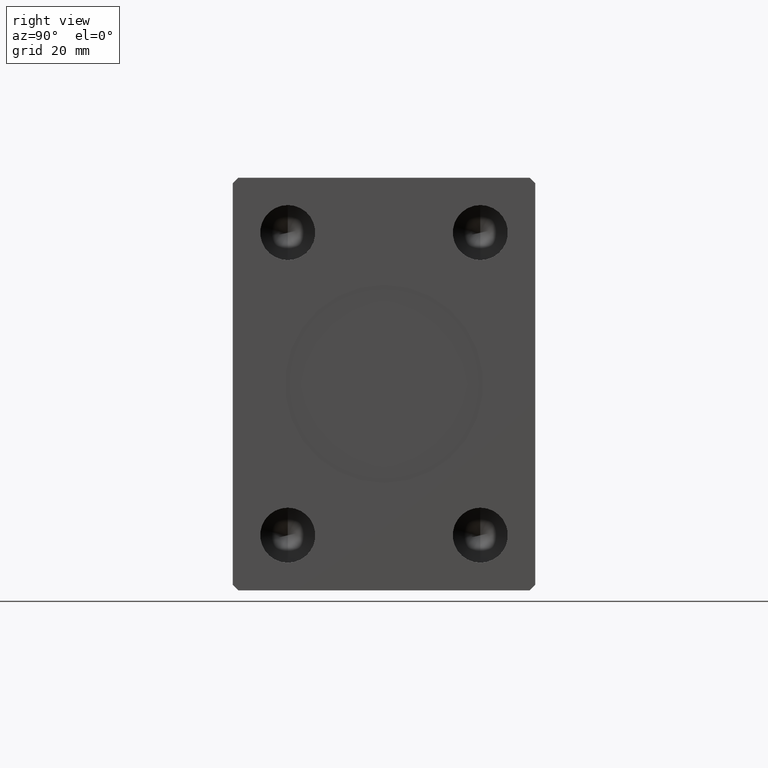
[diagram: clean part render]
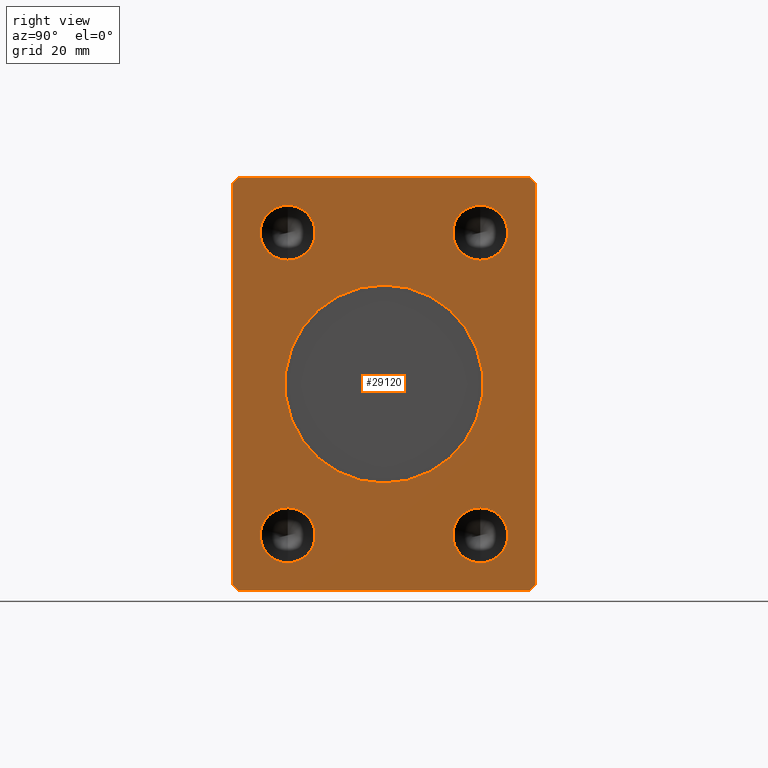
[diagram: same view with one face highlighted and labeled with its STEP entity id]
A machine part, right view. The second image highlights one B-rep face of the part: STEP entity #29120.
In plain terms, the highlighted planar face has unit normal (1, 0, 0).
Its self-contained STEP definition (entity closure, byte-faithful):
#104 = CIRCLE ( 'NONE', #32149, 4.999999999999997335 ) ;
#392 = AXIS2_PLACEMENT_3D ( 'NONE', #19002, #32614, #36185 ) ;
#426 = VECTOR ( 'NONE', #18212, 1000.000000000000000 ) ;
#776 = DIRECTION ( 'NONE',  ( 0.000000000000000000, 0.000000000000000000, -1.000000000000000000 ) ) ;
#962 = FACE_BOUND ( 'NONE', #29353, .T. ) ;
#1121 = EDGE_CURVE ( 'NONE', #28602, #22711, #6205, .T. ) ;
#1706 = ORIENTED_EDGE ( 'NONE', *, *, #24818, .T. ) ;
#1883 = ORIENTED_EDGE ( 'NONE', *, *, #28191, .T. ) ;
#2216 = VECTOR ( 'NONE', #14091, 1000.000000000000114 ) ;
#2313 = VERTEX_POINT ( 'NONE', #7561 ) ;
#3094 = DIRECTION ( 'NONE',  ( 0.000000000000000000, 0.000000000000000000, -1.000000000000000000 ) ) ;
#3260 = LINE ( 'NONE', #17295, #6997 ) ;
#3307 = LINE ( 'NONE', #3747, #30855 ) ;
#3747 = CARTESIAN_POINT ( 'NONE',  ( 85.00000000000000000, 27.50000000000000711, -36.49999999999999289 ) ) ;
#3807 = VERTEX_POINT ( 'NONE', #41342 ) ;
#4028 = ORIENTED_EDGE ( 'NONE', *, *, #42923, .F. ) ;
#4097 = FACE_BOUND ( 'NONE', #12282, .T. ) ;
#4331 = CARTESIAN_POINT ( 'NONE',  ( 85.00000000000000000, 17.50000000000000000, 32.50000000000000000 ) ) ;
#4356 = DIRECTION ( 'NONE',  ( 0.000000000000000000, 0.000000000000000000, -1.000000000000000000 ) ) ;
#4517 = FACE_OUTER_BOUND ( 'NONE', #21265, .T. ) ;
#4935 = EDGE_CURVE ( 'NONE', #3807, #9132, #12690, .T. ) ;
#5580 = VERTEX_POINT ( 'NONE', #33557 ) ;
#6205 = CIRCLE ( 'NONE', #16167, 4.999999999999997335 ) ;
#6872 = EDGE_CURVE ( 'NONE', #12180, #31737, #21332, .T. ) ;
#6997 = VECTOR ( 'NONE', #30912, 1000.000000000000000 ) ;
#7330 = DIRECTION ( 'NONE',  ( 0.000000000000000000, -1.000000000000000000, 0.000000000000000000 ) ) ;
#7561 = CARTESIAN_POINT ( 'NONE',  ( 85.00000000000000000, 27.50000000000000355, 36.50000000000000711 ) ) ;
#7758 = ORIENTED_EDGE ( 'NONE', *, *, #14673, .T. ) ;
#7944 = LINE ( 'NONE', #21555, #426 ) ;
#8345 = CIRCLE ( 'NONE', #33304, 4.999999999999997335 ) ;
#8360 = EDGE_CURVE ( 'NONE', #29668, #11578, #20725, .T. ) ;
#8414 = EDGE_CURVE ( 'NONE', #31737, #12180, #11588, .T. ) ;
#9132 = VERTEX_POINT ( 'NONE', #18963 ) ;
#9409 = AXIS2_PLACEMENT_3D ( 'NONE', #34567, #20739, #33912 ) ;
#9604 = CIRCLE ( 'NONE', #392, 4.999999999999997335 ) ;
#9754 = CIRCLE ( 'NONE', #34708, 4.999999999999997335 ) ;
#9884 = VERTEX_POINT ( 'NONE', #4331 ) ;
#10270 = LINE ( 'NONE', #17405, #28836 ) ;
#10297 = DIRECTION ( 'NONE',  ( 1.000000000000000000, -0.000000000000000000, -0.000000000000000000 ) ) ;
#10411 = CARTESIAN_POINT ( 'NONE',  ( 85.00000000000000000, -27.50000000000000355, -36.49999999999998579 ) ) ;
#10674 = VERTEX_POINT ( 'NONE', #39057 ) ;
#10776 = DIRECTION ( 'NONE',  ( 1.000000000000000000, 0.000000000000000000, 0.000000000000000000 ) ) ;
#11027 = DIRECTION ( 'NONE',  ( 1.000000000000000000, -0.000000000000000000, -0.000000000000000000 ) ) ;
#11429 = FACE_BOUND ( 'NONE', #30997, .T. ) ;
#11578 = VERTEX_POINT ( 'NONE', #39281 ) ;
#11588 = CIRCLE ( 'NONE', #36527, 4.999999999999993783 ) ;
#11703 = CARTESIAN_POINT ( 'NONE',  ( 85.00000000000000000, 26.50000000000000355, 37.50000000000000711 ) ) ;
#12097 = VERTEX_POINT ( 'NONE', #21127 ) ;
#12180 = VERTEX_POINT ( 'NONE', #32908 ) ;
#12192 = DIRECTION ( 'NONE',  ( 1.000000000000000000, -0.000000000000000000, -0.000000000000000000 ) ) ;
#12282 = EDGE_LOOP ( 'NONE', ( #18755, #19779 ) ) ;
#12690 = CIRCLE ( 'NONE', #41226, 4.999999999999997335 ) ;
#12753 = AXIS2_PLACEMENT_3D ( 'NONE', #16543, #10297, #12973 ) ;
#12973 = DIRECTION ( 'NONE',  ( 0.000000000000000000, 0.000000000000000000, -1.000000000000000000 ) ) ;
#14091 = DIRECTION ( 'NONE',  ( 0.000000000000000000, -0.7071067811865474617, -0.7071067811865474617 ) ) ;
#14673 = EDGE_CURVE ( 'NONE', #18251, #10674, #7944, .T. ) ;
#14758 = EDGE_CURVE ( 'NONE', #39424, #18251, #33364, .T. ) ;
#15413 = VERTEX_POINT ( 'NONE', #17339 ) ;
#15636 = VERTEX_POINT ( 'NONE', #37825 ) ;
#15835 = CIRCLE ( 'NONE', #9409, 18.00000000000000000 ) ;
#16167 = AXIS2_PLACEMENT_3D ( 'NONE', #33485, #26775, #23208 ) ;
#16345 = CARTESIAN_POINT ( 'NONE',  ( 85.00000000000000000, 17.50000000000000000, 27.50000000000000000 ) ) ;
#16543 = CARTESIAN_POINT ( 'NONE',  ( 85.00000000000000000, 17.50000000000000000, -27.49999999999999289 ) ) ;
#16936 = EDGE_CURVE ( 'NONE', #12097, #9884, #9604, .T. ) ;
#17295 = CARTESIAN_POINT ( 'NONE',  ( 85.00000000000000000, -27.50000000000000711, 36.50000000000000711 ) ) ;
#17300 = CARTESIAN_POINT ( 'NONE',  ( 85.00000000000000000, -17.50000000000000000, 32.50000000000000000 ) ) ;
#17339 = CARTESIAN_POINT ( 'NONE',  ( 85.00000000000000000, -27.50000000000000711, 36.50000000000000711 ) ) ;
#17343 = DIRECTION ( 'NONE',  ( 0.000000000000000000, -4.752667057470704875E-17, 1.000000000000000000 ) ) ;
#17405 = CARTESIAN_POINT ( 'NONE',  ( 85.00000000000000000, 26.50000000000000711, -37.49999999999999289 ) ) ;
#17908 = EDGE_CURVE ( 'NONE', #11578, #15413, #23231, .T. ) ;
#17912 = DIRECTION ( 'NONE',  ( 0.000000000000000000, 0.000000000000000000, -1.000000000000000000 ) ) ;
#17999 = VECTOR ( 'NONE', #7330, 1000.000000000000000 ) ;
#18212 = DIRECTION ( 'NONE',  ( 0.000000000000000000, 1.000000000000000000, 0.000000000000000000 ) ) ;
#18251 = VERTEX_POINT ( 'NONE', #38784 ) ;
#18726 = CARTESIAN_POINT ( 'NONE',  ( 85.00000000000000000, 27.50000000000000711, -36.49999999999999289 ) ) ;
#18755 = ORIENTED_EDGE ( 'NONE', *, *, #8414, .F. ) ;
#18963 = CARTESIAN_POINT ( 'NONE',  ( 85.00000000000000000, -17.50000000000000000, -32.49999999999999289 ) ) ;
#19002 = CARTESIAN_POINT ( 'NONE',  ( 85.00000000000000000, 17.50000000000000000, 27.50000000000000000 ) ) ;
#19084 = AXIS2_PLACEMENT_3D ( 'NONE', #42697, #21519, #4356 ) ;
#19130 = CARTESIAN_POINT ( 'NONE',  ( 85.00000000000000000, 17.50000000000000000, -27.49999999999999289 ) ) ;
#19500 = EDGE_LOOP ( 'NONE', ( #4028, #27362 ) ) ;
#19779 = ORIENTED_EDGE ( 'NONE', *, *, #6872, .F. ) ;
#19857 = EDGE_CURVE ( 'NONE', #22711, #28602, #104, .T. ) ;
#19930 = ORIENTED_EDGE ( 'NONE', *, *, #42850, .T. ) ;
#20725 = LINE ( 'NONE', #37905, #17999 ) ;
#20739 = DIRECTION ( 'NONE',  ( 1.000000000000000000, 0.000000000000000000, 0.000000000000000000 ) ) ;
#20966 = LINE ( 'NONE', #21194, #40129 ) ;
#21127 = CARTESIAN_POINT ( 'NONE',  ( 85.00000000000000000, 17.50000000000000000, 22.50000000000000355 ) ) ;
#21136 = ORIENTED_EDGE ( 'NONE', *, *, #41219, .F. ) ;
#21167 = ORIENTED_EDGE ( 'NONE', *, *, #17908, .T. ) ;
#21194 = CARTESIAN_POINT ( 'NONE',  ( 85.00000000000000000, 27.50000000000000355, 36.50000000000000711 ) ) ;
#21265 = EDGE_LOOP ( 'NONE', ( #1706, #35850, #21167, #19930, #29623, #7758, #1883, #33709 ) ) ;
#21332 = CIRCLE ( 'NONE', #12753, 4.999999999999993783 ) ;
#21519 = DIRECTION ( 'NONE',  ( 1.000000000000000000, 0.000000000000000000, 0.000000000000000000 ) ) ;
#21555 = CARTESIAN_POINT ( 'NONE',  ( 85.00000000000000000, -26.50000000000000355, -37.49999999999999289 ) ) ;
#21616 = DIRECTION ( 'NONE',  ( 0.000000000000000000, -0.7071067811865474617, 0.7071067811865474617 ) ) ;
#22244 = EDGE_CURVE ( 'NONE', #15636, #5580, #15835, .T. ) ;
#22711 = VERTEX_POINT ( 'NONE', #34410 ) ;
#23208 = DIRECTION ( 'NONE',  ( 0.000000000000000000, 0.000000000000000000, -1.000000000000000000 ) ) ;
#23231 = LINE ( 'NONE', #27470, #2216 ) ;
#23399 = EDGE_CURVE ( 'NONE', #30255, #2313, #3307, .T. ) ;
#24060 = DIRECTION ( 'NONE',  ( 1.000000000000000000, -0.000000000000000000, -0.000000000000000000 ) ) ;
#24633 = CARTESIAN_POINT ( 'NONE',  ( 85.00000000000000000, -17.50000000000000000, -27.49999999999999645 ) ) ;
#24818 = EDGE_CURVE ( 'NONE', #2313, #29668, #20966, .T. ) ;
#24820 = EDGE_LOOP ( 'NONE', ( #34816, #21136 ) ) ;
#25471 = DIRECTION ( 'NONE',  ( 1.000000000000000000, -0.000000000000000000, -0.000000000000000000 ) ) ;
#25803 = DIRECTION ( 'NONE',  ( 0.000000000000000000, 0.000000000000000000, -1.000000000000000000 ) ) ;
#26214 = DIRECTION ( 'NONE',  ( 0.000000000000000000, 0.7071067811865451302, -0.7071067811865500152 ) ) ;
#26775 = DIRECTION ( 'NONE',  ( 1.000000000000000000, -0.000000000000000000, -0.000000000000000000 ) ) ;
#27002 = DIRECTION ( 'NONE',  ( 0.000000000000000000, 0.7071067811865474617, 0.7071067811865474617 ) ) ;
#27362 = ORIENTED_EDGE ( 'NONE', *, *, #22244, .F. ) ;
#27470 = CARTESIAN_POINT ( 'NONE',  ( 85.00000000000000000, -26.50000000000000711, 37.50000000000000711 ) ) ;
#27659 = CIRCLE ( 'NONE', #19084, 18.00000000000000000 ) ;
#27734 = FACE_BOUND ( 'NONE', #24820, .T. ) ;
#28088 = DIRECTION ( 'NONE',  ( 1.000000000000000000, -0.000000000000000000, -0.000000000000000000 ) ) ;
#28186 = VECTOR ( 'NONE', #26214, 1000.000000000000114 ) ;
#28191 = EDGE_CURVE ( 'NONE', #10674, #30255, #10270, .T. ) ;
#28602 = VERTEX_POINT ( 'NONE', #17300 ) ;
#28836 = VECTOR ( 'NONE', #27002, 1000.000000000000114 ) ;
#29120 = ADVANCED_FACE ( 'NONE', ( #38000, #27734, #11429, #4097, #962, #4517 ), #37786, .T. ) ;
#29353 = EDGE_LOOP ( 'NONE', ( #31715, #30794 ) ) ;
#29623 = ORIENTED_EDGE ( 'NONE', *, *, #14758, .T. ) ;
#29668 = VERTEX_POINT ( 'NONE', #11703 ) ;
#29961 = DIRECTION ( 'NONE',  ( 0.000000000000000000, 0.000000000000000000, -1.000000000000000000 ) ) ;
#30255 = VERTEX_POINT ( 'NONE', #18726 ) ;
#30794 = ORIENTED_EDGE ( 'NONE', *, *, #1121, .F. ) ;
#30855 = VECTOR ( 'NONE', #17343, 1000.000000000000000 ) ;
#30912 = DIRECTION ( 'NONE',  ( 0.000000000000000000, 4.752667057470705491E-17, -1.000000000000000000 ) ) ;
#30997 = EDGE_LOOP ( 'NONE', ( #31862, #43089 ) ) ;
#31715 = ORIENTED_EDGE ( 'NONE', *, *, #19857, .F. ) ;
#31737 = VERTEX_POINT ( 'NONE', #40415 ) ;
#31862 = ORIENTED_EDGE ( 'NONE', *, *, #41111, .F. ) ;
#32149 = AXIS2_PLACEMENT_3D ( 'NONE', #42004, #25471, #39098 ) ;
#32614 = DIRECTION ( 'NONE',  ( 1.000000000000000000, -0.000000000000000000, -0.000000000000000000 ) ) ;
#32908 = CARTESIAN_POINT ( 'NONE',  ( 85.00000000000000000, 17.50000000000000000, -22.49999999999999645 ) ) ;
#33304 = AXIS2_PLACEMENT_3D ( 'NONE', #24633, #11027, #776 ) ;
#33364 = LINE ( 'NONE', #43182, #28186 ) ;
#33485 = CARTESIAN_POINT ( 'NONE',  ( 85.00000000000000000, -17.50000000000000000, 27.50000000000000355 ) ) ;
#33557 = CARTESIAN_POINT ( 'NONE',  ( 85.00000000000000000, 0.000000000000000000, -18.00000000000000000 ) ) ;
#33709 = ORIENTED_EDGE ( 'NONE', *, *, #23399, .T. ) ;
#33912 = DIRECTION ( 'NONE',  ( 0.000000000000000000, 0.000000000000000000, -1.000000000000000000 ) ) ;
#34410 = CARTESIAN_POINT ( 'NONE',  ( 85.00000000000000000, -17.50000000000000000, 22.50000000000000711 ) ) ;
#34567 = CARTESIAN_POINT ( 'NONE',  ( 85.00000000000000000, 0.000000000000000000, 0.000000000000000000 ) ) ;
#34708 = AXIS2_PLACEMENT_3D ( 'NONE', #16345, #28088, #29961 ) ;
#34816 = ORIENTED_EDGE ( 'NONE', *, *, #16936, .F. ) ;
#35850 = ORIENTED_EDGE ( 'NONE', *, *, #8360, .T. ) ;
#36185 = DIRECTION ( 'NONE',  ( 0.000000000000000000, 0.000000000000000000, -1.000000000000000000 ) ) ;
#36527 = AXIS2_PLACEMENT_3D ( 'NONE', #19130, #12192, #25803 ) ;
#37227 = CARTESIAN_POINT ( 'NONE',  ( 85.00000000000000000, -17.50000000000000000, -27.49999999999999645 ) ) ;
#37786 = PLANE ( 'NONE',  #43776 ) ;
#37825 = CARTESIAN_POINT ( 'NONE',  ( 85.00000000000000000, 2.204364238465235428E-15, 18.00000000000000000 ) ) ;
#37905 = CARTESIAN_POINT ( 'NONE',  ( 85.00000000000000000, 26.50000000000000355, 37.50000000000000711 ) ) ;
#38000 = FACE_BOUND ( 'NONE', #19500, .T. ) ;
#38784 = CARTESIAN_POINT ( 'NONE',  ( 85.00000000000000000, -26.50000000000000355, -37.49999999999999289 ) ) ;
#39057 = CARTESIAN_POINT ( 'NONE',  ( 85.00000000000000000, 26.50000000000000711, -37.49999999999999289 ) ) ;
#39098 = DIRECTION ( 'NONE',  ( 0.000000000000000000, 0.000000000000000000, -1.000000000000000000 ) ) ;
#39281 = CARTESIAN_POINT ( 'NONE',  ( 85.00000000000000000, -26.50000000000000711, 37.50000000000000711 ) ) ;
#39424 = VERTEX_POINT ( 'NONE', #10411 ) ;
#40129 = VECTOR ( 'NONE', #21616, 1000.000000000000114 ) ;
#40415 = CARTESIAN_POINT ( 'NONE',  ( 85.00000000000000000, 17.50000000000000000, -32.49999999999998579 ) ) ;
#41111 = EDGE_CURVE ( 'NONE', #9132, #3807, #8345, .T. ) ;
#41219 = EDGE_CURVE ( 'NONE', #9884, #12097, #9754, .T. ) ;
#41226 = AXIS2_PLACEMENT_3D ( 'NONE', #37227, #24060, #3094 ) ;
#41342 = CARTESIAN_POINT ( 'NONE',  ( 85.00000000000000000, -17.50000000000000000, -22.50000000000000000 ) ) ;
#41357 = CARTESIAN_POINT ( 'NONE',  ( 85.00000000000000000, 0.000000000000000000, 0.000000000000000000 ) ) ;
#42004 = CARTESIAN_POINT ( 'NONE',  ( 85.00000000000000000, -17.50000000000000000, 27.50000000000000355 ) ) ;
#42697 = CARTESIAN_POINT ( 'NONE',  ( 85.00000000000000000, 0.000000000000000000, 0.000000000000000000 ) ) ;
#42850 = EDGE_CURVE ( 'NONE', #15413, #39424, #3260, .T. ) ;
#42923 = EDGE_CURVE ( 'NONE', #5580, #15636, #27659, .T. ) ;
#43089 = ORIENTED_EDGE ( 'NONE', *, *, #4935, .F. ) ;
#43182 = CARTESIAN_POINT ( 'NONE',  ( 85.00000000000000000, -27.50000000000000355, -36.49999999999998579 ) ) ;
#43776 = AXIS2_PLACEMENT_3D ( 'NONE', #41357, #10776, #17912 ) ;